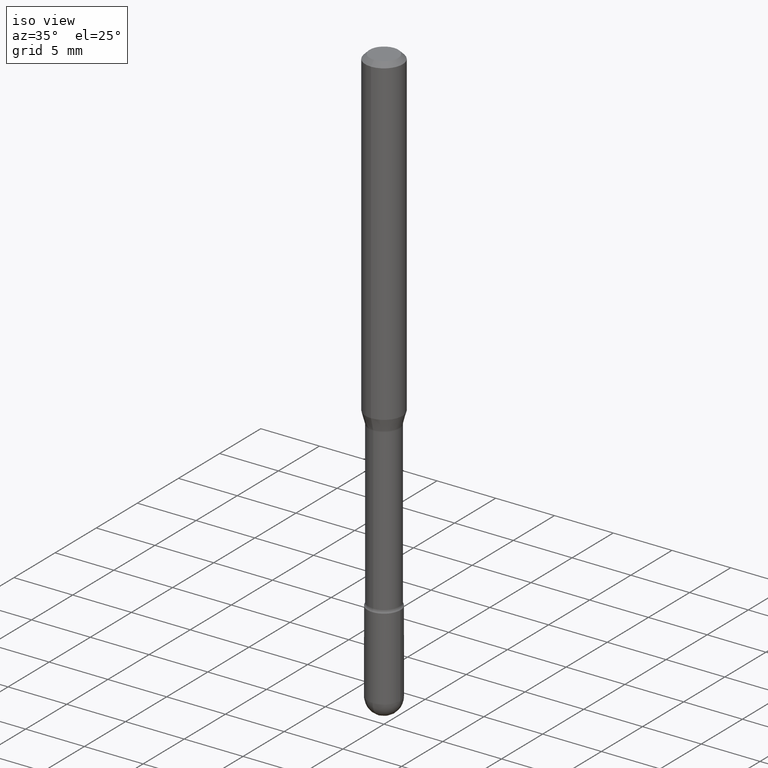
[diagram: clean part render]
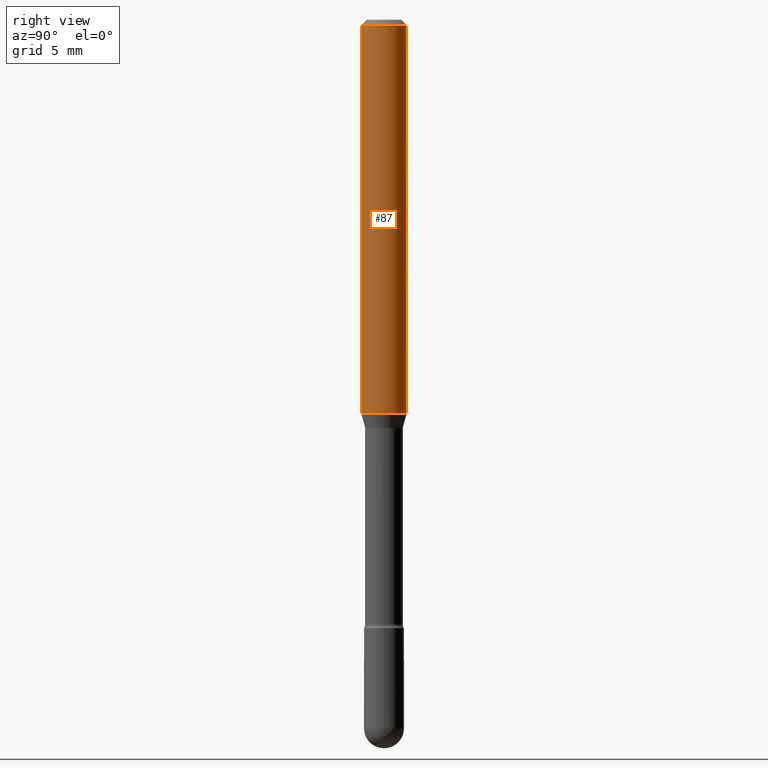
[diagram: tour spotlight — one face highlighted and labeled with its STEP entity id]
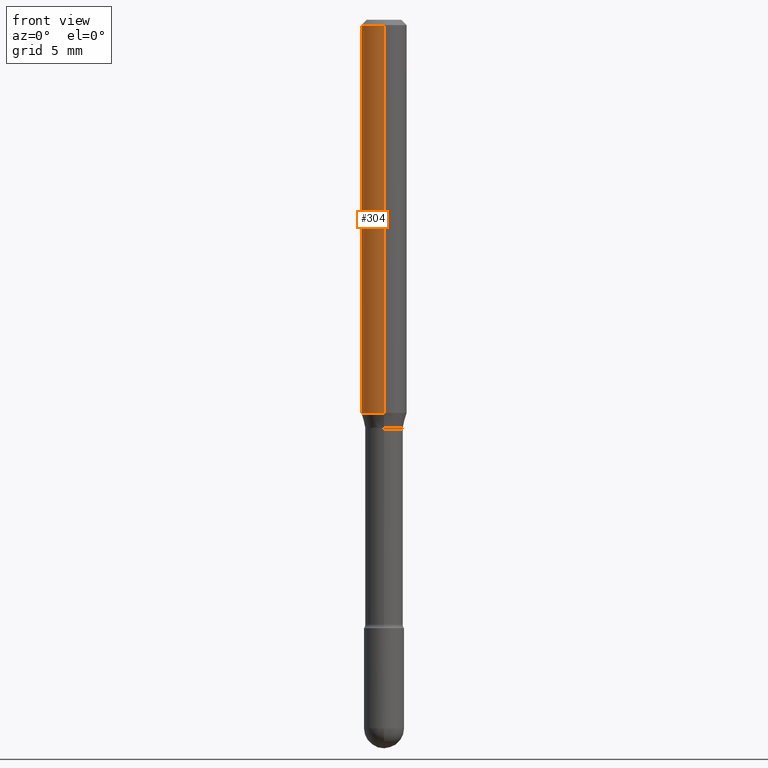
[diagram: tour spotlight — one face highlighted and labeled with its STEP entity id]
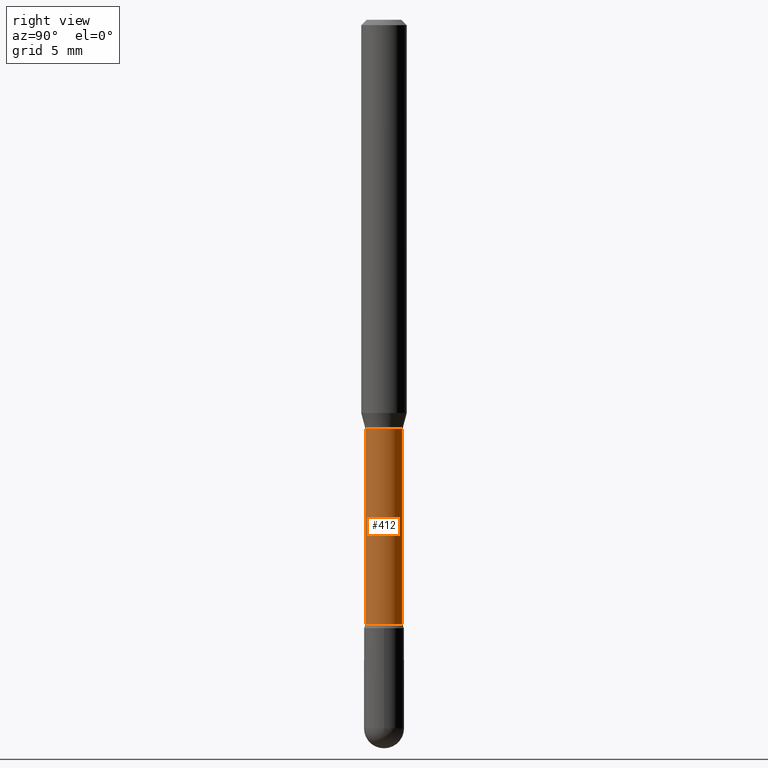
[diagram: tour spotlight — one face highlighted and labeled with its STEP entity id]
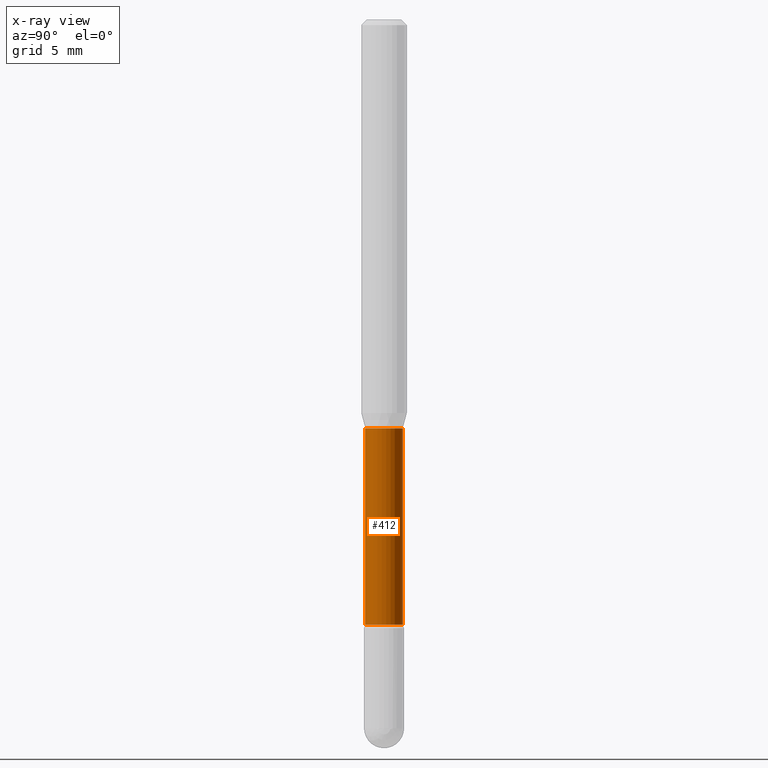
[diagram: x-ray of the same camera — body ghosted, this tour face saturated]
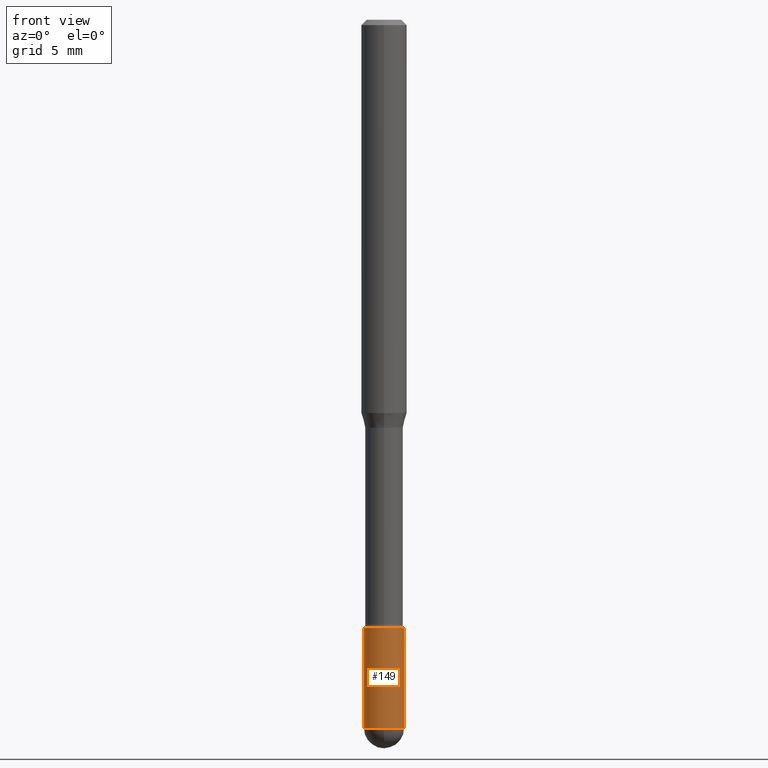
[diagram: tour spotlight — one face highlighted and labeled with its STEP entity id]
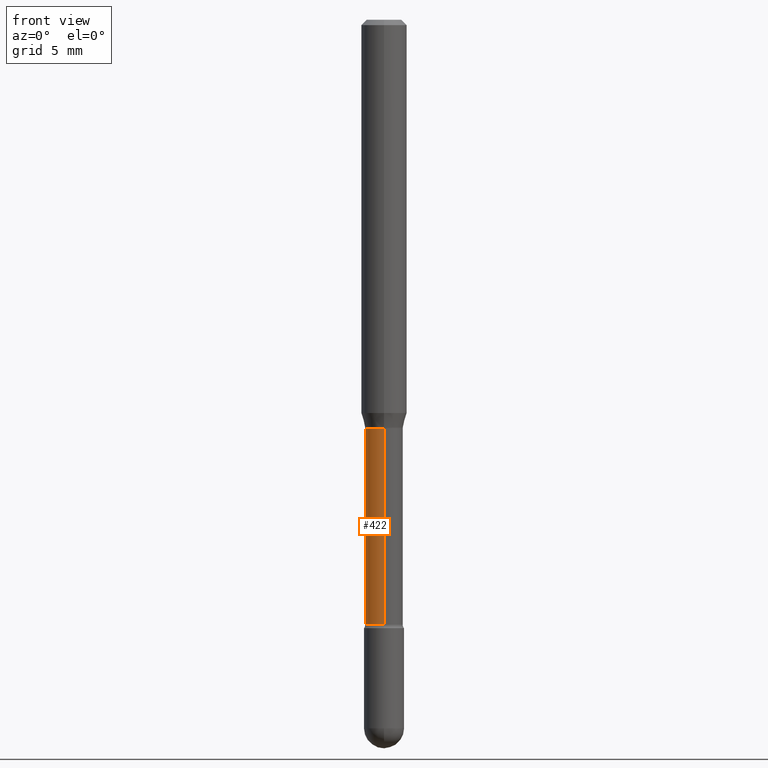
[diagram: tour spotlight — one face highlighted and labeled with its STEP entity id]
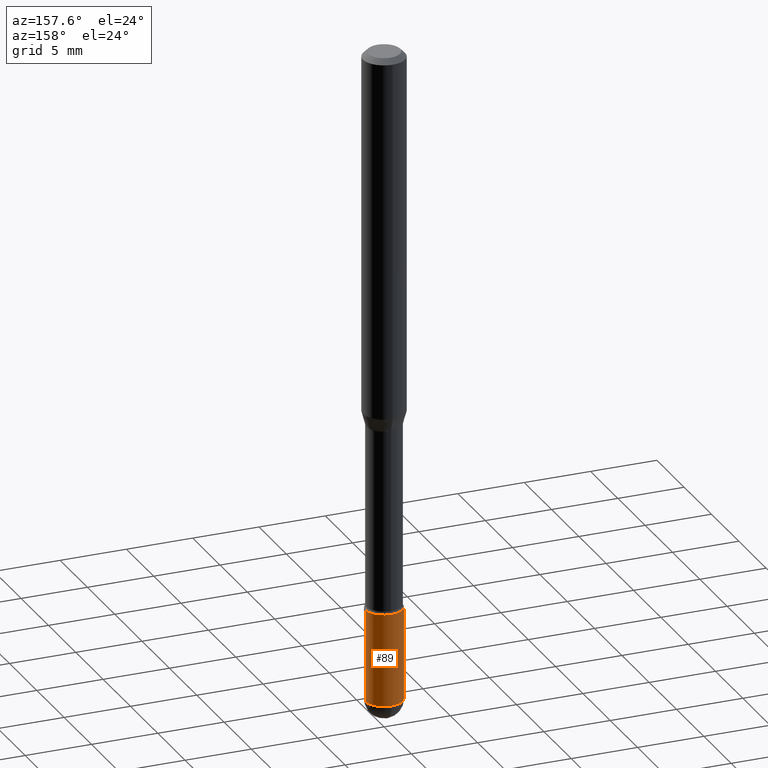
[diagram: tour spotlight — one face highlighted and labeled with its STEP entity id]
A machine part: a face-by-face anatomy tour. The part has 19 B-rep faces; the first image is the clean iso view, then the 6 largest visible faces are spotlighted one at a time (largest first), each with its STEP entity span.

Face 1 — right view, entity #87. In plain terms, the highlighted cylindrical surface (edge-blend (fillet) strip) has radius 1.5875 mm, axis along (-0, 0, 1).
Definition (entity closure, byte-faithful):
#11 = AXIS2_PLACEMENT_3D ( 'NONE', #76, #375, #246 ) ;
#24 = CARTESIAN_POINT ( 'NONE',  ( -4.364351673553916201E-16, -0.06250000000000000000, 6.963005801346586436E-16 ) ) ;
#28 = EDGE_CURVE ( 'NONE', #503, #494, #262, .T. ) ;
#33 = DIRECTION ( 'NONE',  ( -6.982962677686265922E-15, -1.000000000000000000, 3.483106191921935554E-15 ) ) ;
#67 = AXIS2_PLACEMENT_3D ( 'NONE', #243, #331, #498 ) ;
#72 = CARTESIAN_POINT ( 'NONE',  ( 4.440892098500625669E-16, 0.06250000000000000000, 2.598462176478334336E-16 ) ) ;
#76 = CARTESIAN_POINT ( 'NONE',  ( 2.640241856761700178E-29, -3.769896732324770505E-15, -1.079693851278255678 ) ) ;
#87 = ADVANCED_FACE ( 'NONE', ( #540 ), #142, .T. ) ;
#110 = ORIENTED_EDGE ( 'NONE', *, *, #28, .F. ) ;
#117 = EDGE_LOOP ( 'NONE', ( #197, #194, #110, #183 ) ) ;
#142 = CYLINDRICAL_SURFACE ( 'NONE', #67, 0.06250000000000000000 ) ;
#155 = VERTEX_POINT ( 'NONE', #464 ) ;
#166 = VECTOR ( 'NONE', #538, 39.37007874015748143 ) ;
#182 = CARTESIAN_POINT ( 'NONE',  ( -4.364351673553652919E-16, -0.06250000000000377476, -1.079693851278255456 ) ) ;
#183 = ORIENTED_EDGE ( 'NONE', *, *, #488, .F. ) ;
#186 = CARTESIAN_POINT ( 'NONE',  ( -4.364351673553912750E-16, -0.06250000000000005551, -0.01499999999999986587 ) ) ;
#194 = ORIENTED_EDGE ( 'NONE', *, *, #560, .T. ) ;
#195 = AXIS2_PLACEMENT_3D ( 'NONE', #446, #541, #33 ) ;
#197 = ORIENTED_EDGE ( 'NONE', *, *, #441, .T. ) ;
#236 = CARTESIAN_POINT ( 'NONE',  ( 4.440892098500891416E-16, 0.06249999999999995143, -0.01500000000000030129 ) ) ;
#243 = CARTESIAN_POINT ( 'NONE',  ( -1.169113584055446105E-44, 1.669184350826100908E-30, 4.780733988912460139E-16 ) ) ;
#246 = DIRECTION ( 'NONE',  ( -6.982962677686265922E-15, -1.000000000000000000, 4.370956789862821150E-15 ) ) ;
#262 = CIRCLE ( 'NONE', #195, 0.06250000000000000000 ) ;
#280 = LINE ( 'NONE', #24, #166 ) ;
#328 = VERTEX_POINT ( 'NONE', #182 ) ;
#331 = DIRECTION ( 'NONE',  ( -2.445361575076029644E-29, 3.491634899894602075E-15, 1.000000000000000000 ) ) ;
#343 = LINE ( 'NONE', #72, #536 ) ;
#375 = DIRECTION ( 'NONE',  ( -2.445361575076029644E-29, 3.491634899894602075E-15, 1.000000000000000000 ) ) ;
#417 = DIRECTION ( 'NONE',  ( -2.445361575076029644E-29, 3.491634899894602075E-15, 1.000000000000000000 ) ) ;
#441 = EDGE_CURVE ( 'NONE', #328, #155, #496, .T. ) ;
#446 = CARTESIAN_POINT ( 'NONE',  ( 3.668042362614064837E-31, -5.237452349841932127E-17, -0.01500000000000008271 ) ) ;
#464 = CARTESIAN_POINT ( 'NONE',  ( 4.440892098500888458E-16, 0.06249999999999621830, -1.079693851278256123 ) ) ;
#488 = EDGE_CURVE ( 'NONE', #328, #503, #280, .T. ) ;
#494 = VERTEX_POINT ( 'NONE', #236 ) ;
#496 = CIRCLE ( 'NONE', #11, 0.06250000000000000000 ) ;
#498 = DIRECTION ( 'NONE',  ( -6.982962677686265922E-15, -1.000000000000000000, 3.491634899894601286E-15 ) ) ;
#503 = VERTEX_POINT ( 'NONE', #186 ) ;
#536 = VECTOR ( 'NONE', #417, 39.37007874015748143 ) ;
#538 = DIRECTION ( 'NONE',  ( -2.445361575076029644E-29, 3.491634899894602075E-15, 1.000000000000000000 ) ) ;
#540 = FACE_OUTER_BOUND ( 'NONE', #117, .T. ) ;
#541 = DIRECTION ( 'NONE',  ( -2.445361575076029644E-29, 3.491634899894602075E-15, 1.000000000000000000 ) ) ;
#560 = EDGE_CURVE ( 'NONE', #155, #494, #343, .T. ) ;

Face 2 — front view, entity #304. In plain terms, the highlighted cylindrical surface (edge-blend (fillet) strip) has radius 1.5875 mm, axis along (-0, 0, 1).
Definition (entity closure, byte-faithful):
#24 = CARTESIAN_POINT ( 'NONE',  ( -4.364351673553916201E-16, -0.06250000000000000000, 6.963005801346586436E-16 ) ) ;
#43 = CARTESIAN_POINT ( 'NONE',  ( 2.640241856761700178E-29, -3.769896732324770505E-15, -1.079693851278255678 ) ) ;
#47 = DIRECTION ( 'NONE',  ( -6.982962677686265922E-15, -1.000000000000000000, 3.483106191921935554E-15 ) ) ;
#51 = CYLINDRICAL_SURFACE ( 'NONE', #308, 0.06250000000000000000 ) ;
#52 = ORIENTED_EDGE ( 'NONE', *, *, #256, .F. ) ;
#56 = CARTESIAN_POINT ( 'NONE',  ( -1.169113584055446105E-44, 1.669184350826100908E-30, 4.780733988912460139E-16 ) ) ;
#72 = CARTESIAN_POINT ( 'NONE',  ( 4.440892098500625669E-16, 0.06250000000000000000, 2.598462176478334336E-16 ) ) ;
#84 = DIRECTION ( 'NONE',  ( -2.445361575076029644E-29, 3.491634899894602075E-15, 1.000000000000000000 ) ) ;
#94 = AXIS2_PLACEMENT_3D ( 'NONE', #393, #171, #47 ) ;
#155 = VERTEX_POINT ( 'NONE', #464 ) ;
#166 = VECTOR ( 'NONE', #538, 39.37007874015748143 ) ;
#171 = DIRECTION ( 'NONE',  ( -2.445361575076029644E-29, 3.491634899894602075E-15, 1.000000000000000000 ) ) ;
#182 = CARTESIAN_POINT ( 'NONE',  ( -4.364351673553652919E-16, -0.06250000000000377476, -1.079693851278255456 ) ) ;
#184 = AXIS2_PLACEMENT_3D ( 'NONE', #43, #84, #210 ) ;
#185 = EDGE_LOOP ( 'NONE', ( #373, #549, #411, #52 ) ) ;
#186 = CARTESIAN_POINT ( 'NONE',  ( -4.364351673553912750E-16, -0.06250000000000005551, -0.01499999999999986587 ) ) ;
#196 = EDGE_CURVE ( 'NONE', #155, #328, #386, .T. ) ;
#210 = DIRECTION ( 'NONE',  ( -6.982962677686265922E-15, -1.000000000000000000, 4.370956789862821150E-15 ) ) ;
#224 = DIRECTION ( 'NONE',  ( -2.445361575076029644E-29, 3.491634899894602075E-15, 1.000000000000000000 ) ) ;
#236 = CARTESIAN_POINT ( 'NONE',  ( 4.440892098500891416E-16, 0.06249999999999995143, -0.01500000000000030129 ) ) ;
#256 = EDGE_CURVE ( 'NONE', #494, #503, #495, .T. ) ;
#259 = DIRECTION ( 'NONE',  ( -6.982962677686265922E-15, -1.000000000000000000, 3.491634899894601286E-15 ) ) ;
#280 = LINE ( 'NONE', #24, #166 ) ;
#304 = ADVANCED_FACE ( 'NONE', ( #476 ), #51, .T. ) ;
#308 = AXIS2_PLACEMENT_3D ( 'NONE', #56, #224, #259 ) ;
#328 = VERTEX_POINT ( 'NONE', #182 ) ;
#343 = LINE ( 'NONE', #72, #536 ) ;
#373 = ORIENTED_EDGE ( 'NONE', *, *, #560, .F. ) ;
#386 = CIRCLE ( 'NONE', #184, 0.06250000000000000000 ) ;
#393 = CARTESIAN_POINT ( 'NONE',  ( 3.668042362614064837E-31, -5.237452349841932127E-17, -0.01500000000000008271 ) ) ;
#411 = ORIENTED_EDGE ( 'NONE', *, *, #488, .T. ) ;
#417 = DIRECTION ( 'NONE',  ( -2.445361575076029644E-29, 3.491634899894602075E-15, 1.000000000000000000 ) ) ;
#464 = CARTESIAN_POINT ( 'NONE',  ( 4.440892098500888458E-16, 0.06249999999999621830, -1.079693851278256123 ) ) ;
#476 = FACE_OUTER_BOUND ( 'NONE', #185, .T. ) ;
#488 = EDGE_CURVE ( 'NONE', #328, #503, #280, .T. ) ;
#494 = VERTEX_POINT ( 'NONE', #236 ) ;
#495 = CIRCLE ( 'NONE', #94, 0.06250000000000000000 ) ;
#503 = VERTEX_POINT ( 'NONE', #186 ) ;
#536 = VECTOR ( 'NONE', #417, 39.37007874015748143 ) ;
#538 = DIRECTION ( 'NONE',  ( -2.445361575076029644E-29, 3.491634899894602075E-15, 1.000000000000000000 ) ) ;
#549 = ORIENTED_EDGE ( 'NONE', *, *, #196, .T. ) ;
#560 = EDGE_CURVE ( 'NONE', #155, #494, #343, .T. ) ;

Face 3 — right view, entity #412. An x-ray twin of the same camera follows (body ghosted, this face saturated) — the face is partly hidden behind the body. In plain terms, the highlighted cylindrical surface (edge-blend (fillet) strip) has radius 1.3132 mm, axis along (-0, 0, 1).
Definition (entity closure, byte-faithful):
#6 = VECTOR ( 'NONE', #509, 39.37007874015748143 ) ;
#37 = VERTEX_POINT ( 'NONE', #363 ) ;
#62 = CARTESIAN_POINT ( 'NONE',  ( 3.790745495280543333E-16, 0.05169999999999428525, -1.660613307291703089 ) ) ;
#64 = DIRECTION ( 'NONE',  ( -2.445361575076029644E-29, 3.491634899894602075E-15, 1.000000000000000000 ) ) ;
#86 = VERTEX_POINT ( 'NONE', #62 ) ;
#105 = DIRECTION ( 'NONE',  ( -2.445361575076029644E-29, 3.491634899894602075E-15, 1.000000000000000000 ) ) ;
#108 = VERTEX_POINT ( 'NONE', #116 ) ;
#111 = CIRCLE ( 'NONE', #137, 0.05170000000000008616 ) ;
#116 = CARTESIAN_POINT ( 'NONE',  ( -3.610191704363525413E-16, -0.05170000000000391643, -1.121974787463810408 ) ) ;
#118 = VECTOR ( 'NONE', #64, 39.37007874015748143 ) ;
#121 = EDGE_CURVE ( 'NONE', #365, #108, #337, .T. ) ;
#123 = ORIENTED_EDGE ( 'NONE', *, *, #121, .F. ) ;
#137 = AXIS2_PLACEMENT_3D ( 'NONE', #409, #105, #545 ) ;
#160 = AXIS2_PLACEMENT_3D ( 'NONE', #360, #233, #400 ) ;
#192 = CARTESIAN_POINT ( 'NONE',  ( -3.610191704363399195E-16, -0.05170000000000588014, -1.660613307291702645 ) ) ;
#201 = DIRECTION ( 'NONE',  ( -6.982962677686265133E-15, -1.000000000000000000, 3.491634899894602469E-15 ) ) ;
#233 = DIRECTION ( 'NONE',  ( -2.445361575076029644E-29, 3.491634899894602075E-15, 1.000000000000000000 ) ) ;
#261 = CARTESIAN_POINT ( 'NONE',  ( -3.610191704363802007E-16, -0.05170000000000004453, 6.585909232157971509E-16 ) ) ;
#278 = LINE ( 'NONE', #327, #118 ) ;
#301 = AXIS2_PLACEMENT_3D ( 'NONE', #336, #455, #201 ) ;
#316 = ORIENTED_EDGE ( 'NONE', *, *, #389, .T. ) ;
#327 = CARTESIAN_POINT ( 'NONE',  ( 3.673505943879720139E-16, 0.05170000000000004453, 2.975558745666949756E-16 ) ) ;
#330 = CIRCLE ( 'NONE', #160, 0.05169999999999999596 ) ;
#336 = CARTESIAN_POINT ( 'NONE',  ( -1.169113584055446105E-44, 1.669184350826100908E-30, 4.780733988912460139E-16 ) ) ;
#337 = LINE ( 'NONE', #261, #6 ) ;
#351 = EDGE_LOOP ( 'NONE', ( #316, #406, #435, #123 ) ) ;
#360 = CARTESIAN_POINT ( 'NONE',  ( 2.743634033468097732E-29, -3.917526324710470150E-15, -1.121974787463810630 ) ) ;
#363 = CARTESIAN_POINT ( 'NONE',  ( 3.673505943880125909E-16, 0.05169999999999608242, -1.121974787463810630 ) ) ;
#365 = VERTEX_POINT ( 'NONE', #192 ) ;
#384 = EDGE_CURVE ( 'NONE', #86, #37, #278, .T. ) ;
#389 = EDGE_CURVE ( 'NONE', #365, #86, #111, .T. ) ;
#400 = DIRECTION ( 'NONE',  ( -6.982962677686266711E-15, -1.000000000000000000, 2.642019336232363246E-15 ) ) ;
#406 = ORIENTED_EDGE ( 'NONE', *, *, #384, .T. ) ;
#409 = CARTESIAN_POINT ( 'NONE',  ( 4.060799972711053530E-29, -5.798255378969109189E-15, -1.660613307291702867 ) ) ;
#412 = ADVANCED_FACE ( 'NONE', ( #463 ), #550, .T. ) ;
#435 = ORIENTED_EDGE ( 'NONE', *, *, #519, .F. ) ;
#455 = DIRECTION ( 'NONE',  ( -2.445361575076029644E-29, 3.491634899894602075E-15, 1.000000000000000000 ) ) ;
#463 = FACE_OUTER_BOUND ( 'NONE', #351, .T. ) ;
#509 = DIRECTION ( 'NONE',  ( -2.445361575076029644E-29, 3.491634899894602075E-15, 1.000000000000000000 ) ) ;
#519 = EDGE_CURVE ( 'NONE', #108, #37, #330, .T. ) ;
#545 = DIRECTION ( 'NONE',  ( -6.982962677686265133E-15, -1.000000000000000000, 5.284038672464717026E-15 ) ) ;
#550 = CYLINDRICAL_SURFACE ( 'NONE', #301, 0.05170000000000004453 ) ;

Face 4 — front view, entity #149. In plain terms, the highlighted cylindrical surface (edge-blend (fillet) strip) has radius 1.397 mm, axis along (-0, 0, 1).
Definition (entity closure, byte-faithful):
#9 = DIRECTION ( 'NONE',  ( 1.000000000000000000, -6.982962677686262766E-15, 0.000000000000000000 ) ) ;
#10 = VERTEX_POINT ( 'NONE', #65 ) ;
#15 = CARTESIAN_POINT ( 'NONE',  ( 4.756436828030089694E-29, -6.790931204049916306E-15, -1.944999999999999618 ) ) ;
#41 = LINE ( 'NONE', #204, #326 ) ;
#61 = ORIENTED_EDGE ( 'NONE', *, *, #267, .F. ) ;
#65 = CARTESIAN_POINT ( 'NONE',  ( 0.05500000000000000028, -6.694915467231728877E-15, -1.944999999999999618 ) ) ;
#70 = CIRCLE ( 'NONE', #135, 0.05500000000000000028 ) ;
#74 = VERTEX_POINT ( 'NONE', #490 ) ;
#78 = VERTEX_POINT ( 'NONE', #98 ) ;
#85 = DIRECTION ( 'NONE',  ( -2.445468806185136597E-29, 3.491481338843145583E-15, 1.000000000000000000 ) ) ;
#91 = DIRECTION ( 'NONE',  ( -2.445468806185136877E-29, 3.491481338843145188E-15, 1.000000000000000000 ) ) ;
#98 = CARTESIAN_POINT ( 'NONE',  ( -3.907985046680076246E-16, -0.05500000000000680733, -1.944999999999999396 ) ) ;
#122 = DIRECTION ( 'NONE',  ( 1.000000000000000000, -6.982962677686266711E-15, 4.876176775795935793E-29 ) ) ;
#127 = CARTESIAN_POINT ( 'NONE',  ( 0.05500000000000000028, -3.840629472727446888E-16, 2.681897226687764826E-30 ) ) ;
#135 = AXIS2_PLACEMENT_3D ( 'NONE', #231, #85, #9 ) ;
#149 = ADVANCED_FACE ( 'NONE', ( #427 ), #555, .T. ) ;
#159 = CIRCLE ( 'NONE', #317, 0.05500000000000000028 ) ;
#173 = ORIENTED_EDGE ( 'NONE', *, *, #205, .F. ) ;
#204 = CARTESIAN_POINT ( 'NONE',  ( -0.05500000000000000028, 3.907985046680551042E-16, -2.705414299640198362E-30 ) ) ;
#205 = EDGE_CURVE ( 'NONE', #354, #268, #41, .T. ) ;
#215 = AXIS2_PLACEMENT_3D ( 'NONE', #15, #465, #253 ) ;
#220 = CARTESIAN_POINT ( 'NONE',  ( -0.05500000000000000028, -5.920054015290930021E-15, -1.669999999999999929 ) ) ;
#221 = ORIENTED_EDGE ( 'NONE', *, *, #525, .T. ) ;
#231 = CARTESIAN_POINT ( 'NONE',  ( 4.756436828030089694E-29, -6.790931204049916306E-15, -1.944999999999999618 ) ) ;
#253 = DIRECTION ( 'NONE',  ( 1.000000000000000000, -6.982962677686262766E-15, 0.000000000000000000 ) ) ;
#266 = CARTESIAN_POINT ( 'NONE',  ( 4.083932906329177803E-29, -5.830773835868053056E-15, -1.669999999999999929 ) ) ;
#267 = EDGE_CURVE ( 'NONE', #268, #74, #159, .T. ) ;
#268 = VERTEX_POINT ( 'NONE', #220 ) ;
#271 = ORIENTED_EDGE ( 'NONE', *, *, #315, .T. ) ;
#277 = EDGE_CURVE ( 'NONE', #10, #74, #482, .T. ) ;
#294 = CARTESIAN_POINT ( 'NONE',  ( 0.000000000000000000, 0.000000000000000000, 0.000000000000000000 ) ) ;
#302 = DIRECTION ( 'NONE',  ( -2.445468806185136877E-29, 3.491481338843145188E-15, 1.000000000000000000 ) ) ;
#315 = EDGE_CURVE ( 'NONE', #354, #78, #70, .T. ) ;
#317 = AXIS2_PLACEMENT_3D ( 'NONE', #266, #481, #484 ) ;
#326 = VECTOR ( 'NONE', #302, 39.37007874015748143 ) ;
#342 = AXIS2_PLACEMENT_3D ( 'NONE', #294, #383, #122 ) ;
#354 = VERTEX_POINT ( 'NONE', #382 ) ;
#382 = CARTESIAN_POINT ( 'NONE',  ( -0.05500000000000000028, -5.920054015290930021E-15, -1.944999999999999618 ) ) ;
#383 = DIRECTION ( 'NONE',  ( -2.445468806185136597E-29, 3.491481338843145583E-15, 1.000000000000000000 ) ) ;
#394 = ORIENTED_EDGE ( 'NONE', *, *, #277, .T. ) ;
#402 = EDGE_LOOP ( 'NONE', ( #173, #271, #221, #394, #61 ) ) ;
#427 = FACE_OUTER_BOUND ( 'NONE', #402, .T. ) ;
#465 = DIRECTION ( 'NONE',  ( -2.445468806185136597E-29, 3.491481338843145583E-15, 1.000000000000000000 ) ) ;
#475 = VECTOR ( 'NONE', #91, 39.37007874015748143 ) ;
#481 = DIRECTION ( 'NONE',  ( -2.445468806185136597E-29, 3.491481338843145583E-15, 1.000000000000000000 ) ) ;
#482 = LINE ( 'NONE', #127, #475 ) ;
#484 = DIRECTION ( 'NONE',  ( 1.000000000000000000, -6.982962677686262766E-15, 0.000000000000000000 ) ) ;
#487 = CIRCLE ( 'NONE', #215, 0.05500000000000000028 ) ;
#490 = CARTESIAN_POINT ( 'NONE',  ( 0.05500000000000000028, -6.214836783140797252E-15, -1.669999999999999929 ) ) ;
#525 = EDGE_CURVE ( 'NONE', #78, #10, #487, .T. ) ;
#555 = CYLINDRICAL_SURFACE ( 'NONE', #342, 0.05500000000000000028 ) ;

Face 5 — front view, entity #422. In plain terms, the highlighted cylindrical surface (edge-blend (fillet) strip) has radius 1.3132 mm, axis along (-0, 0, 1).
Definition (entity closure, byte-faithful):
#6 = VECTOR ( 'NONE', #509, 39.37007874015748143 ) ;
#17 = DIRECTION ( 'NONE',  ( -6.982962677686265133E-15, -1.000000000000000000, 5.284038672464717026E-15 ) ) ;
#29 = FACE_OUTER_BOUND ( 'NONE', #97, .T. ) ;
#32 = CYLINDRICAL_SURFACE ( 'NONE', #175, 0.05170000000000004453 ) ;
#37 = VERTEX_POINT ( 'NONE', #363 ) ;
#62 = CARTESIAN_POINT ( 'NONE',  ( 3.790745495280543333E-16, 0.05169999999999428525, -1.660613307291703089 ) ) ;
#64 = DIRECTION ( 'NONE',  ( -2.445361575076029644E-29, 3.491634899894602075E-15, 1.000000000000000000 ) ) ;
#86 = VERTEX_POINT ( 'NONE', #62 ) ;
#97 = EDGE_LOOP ( 'NONE', ( #193, #480, #276, #254 ) ) ;
#108 = VERTEX_POINT ( 'NONE', #116 ) ;
#113 = DIRECTION ( 'NONE',  ( -2.445361575076029644E-29, 3.491634899894602075E-15, 1.000000000000000000 ) ) ;
#116 = CARTESIAN_POINT ( 'NONE',  ( -3.610191704363525413E-16, -0.05170000000000391643, -1.121974787463810408 ) ) ;
#118 = VECTOR ( 'NONE', #64, 39.37007874015748143 ) ;
#121 = EDGE_CURVE ( 'NONE', #365, #108, #337, .T. ) ;
#124 = CIRCLE ( 'NONE', #448, 0.05169999999999999596 ) ;
#133 = DIRECTION ( 'NONE',  ( -2.445361575076029644E-29, 3.491634899894602075E-15, 1.000000000000000000 ) ) ;
#175 = AXIS2_PLACEMENT_3D ( 'NONE', #548, #113, #378 ) ;
#192 = CARTESIAN_POINT ( 'NONE',  ( -3.610191704363399195E-16, -0.05170000000000588014, -1.660613307291702645 ) ) ;
#193 = ORIENTED_EDGE ( 'NONE', *, *, #384, .F. ) ;
#254 = ORIENTED_EDGE ( 'NONE', *, *, #347, .F. ) ;
#261 = CARTESIAN_POINT ( 'NONE',  ( -3.610191704363802007E-16, -0.05170000000000004453, 6.585909232157971509E-16 ) ) ;
#276 = ORIENTED_EDGE ( 'NONE', *, *, #121, .T. ) ;
#278 = LINE ( 'NONE', #327, #118 ) ;
#284 = DIRECTION ( 'NONE',  ( -2.445361575076029644E-29, 3.491634899894602075E-15, 1.000000000000000000 ) ) ;
#327 = CARTESIAN_POINT ( 'NONE',  ( 3.673505943879720139E-16, 0.05170000000000004453, 2.975558745666949756E-16 ) ) ;
#337 = LINE ( 'NONE', #261, #6 ) ;
#347 = EDGE_CURVE ( 'NONE', #37, #108, #124, .T. ) ;
#359 = CIRCLE ( 'NONE', #370, 0.05170000000000008616 ) ;
#363 = CARTESIAN_POINT ( 'NONE',  ( 3.673505943880125909E-16, 0.05169999999999608242, -1.121974787463810630 ) ) ;
#365 = VERTEX_POINT ( 'NONE', #192 ) ;
#370 = AXIS2_PLACEMENT_3D ( 'NONE', #497, #284, #17 ) ;
#374 = EDGE_CURVE ( 'NONE', #86, #365, #359, .T. ) ;
#378 = DIRECTION ( 'NONE',  ( -6.982962677686265133E-15, -1.000000000000000000, 3.491634899894602469E-15 ) ) ;
#384 = EDGE_CURVE ( 'NONE', #86, #37, #278, .T. ) ;
#422 = ADVANCED_FACE ( 'NONE', ( #29 ), #32, .T. ) ;
#423 = DIRECTION ( 'NONE',  ( -6.982962677686266711E-15, -1.000000000000000000, 2.642019336232363246E-15 ) ) ;
#448 = AXIS2_PLACEMENT_3D ( 'NONE', #530, #133, #423 ) ;
#480 = ORIENTED_EDGE ( 'NONE', *, *, #374, .T. ) ;
#497 = CARTESIAN_POINT ( 'NONE',  ( 4.060799972711053530E-29, -5.798255378969109189E-15, -1.660613307291702867 ) ) ;
#509 = DIRECTION ( 'NONE',  ( -2.445361575076029644E-29, 3.491634899894602075E-15, 1.000000000000000000 ) ) ;
#530 = CARTESIAN_POINT ( 'NONE',  ( 2.743634033468097732E-29, -3.917526324710470150E-15, -1.121974787463810630 ) ) ;
#548 = CARTESIAN_POINT ( 'NONE',  ( -1.169113584055446105E-44, 1.669184350826100908E-30, 4.780733988912460139E-16 ) ) ;

Face 6 — auxiliary view, entity #89. In plain terms, the highlighted cylindrical surface (edge-blend (fillet) strip) has radius 1.397 mm, axis along (-0, 0, 1).
Definition (entity closure, byte-faithful):
#1 = DIRECTION ( 'NONE',  ( 1.000000000000000000, -6.982962677686262766E-15, 0.000000000000000000 ) ) ;
#10 = VERTEX_POINT ( 'NONE', #65 ) ;
#41 = LINE ( 'NONE', #204, #326 ) ;
#65 = CARTESIAN_POINT ( 'NONE',  ( 0.05500000000000000028, -6.694915467231728877E-15, -1.944999999999999618 ) ) ;
#66 = VERTEX_POINT ( 'NONE', #369 ) ;
#74 = VERTEX_POINT ( 'NONE', #490 ) ;
#82 = FACE_OUTER_BOUND ( 'NONE', #287, .T. ) ;
#89 = ADVANCED_FACE ( 'NONE', ( #82 ), #161, .T. ) ;
#91 = DIRECTION ( 'NONE',  ( -2.445468806185136877E-29, 3.491481338843145188E-15, 1.000000000000000000 ) ) ;
#101 = DIRECTION ( 'NONE',  ( 1.000000000000000000, -6.982962677686262766E-15, 0.000000000000000000 ) ) ;
#127 = CARTESIAN_POINT ( 'NONE',  ( 0.05500000000000000028, -3.840629472727446888E-16, 2.681897226687764826E-30 ) ) ;
#145 = DIRECTION ( 'NONE',  ( 1.000000000000000000, -6.982962677686262766E-15, 0.000000000000000000 ) ) ;
#146 = AXIS2_PLACEMENT_3D ( 'NONE', #471, #346, #1 ) ;
#158 = DIRECTION ( 'NONE',  ( -2.445468806185136597E-29, 3.491481338843145583E-15, 1.000000000000000000 ) ) ;
#161 = CYLINDRICAL_SURFACE ( 'NONE', #290, 0.05500000000000000028 ) ;
#198 = CIRCLE ( 'NONE', #230, 0.05500000000000000028 ) ;
#204 = CARTESIAN_POINT ( 'NONE',  ( -0.05500000000000000028, 3.907985046680551042E-16, -2.705414299640198362E-30 ) ) ;
#205 = EDGE_CURVE ( 'NONE', #354, #268, #41, .T. ) ;
#220 = CARTESIAN_POINT ( 'NONE',  ( -0.05500000000000000028, -5.920054015290930021E-15, -1.669999999999999929 ) ) ;
#230 = AXIS2_PLACEMENT_3D ( 'NONE', #367, #324, #145 ) ;
#245 = EDGE_CURVE ( 'NONE', #66, #354, #553, .T. ) ;
#260 = CARTESIAN_POINT ( 'NONE',  ( 0.000000000000000000, 0.000000000000000000, 0.000000000000000000 ) ) ;
#268 = VERTEX_POINT ( 'NONE', #220 ) ;
#277 = EDGE_CURVE ( 'NONE', #10, #74, #482, .T. ) ;
#287 = EDGE_LOOP ( 'NONE', ( #358, #433, #323, #289, #531 ) ) ;
#289 = ORIENTED_EDGE ( 'NONE', *, *, #277, .F. ) ;
#290 = AXIS2_PLACEMENT_3D ( 'NONE', #260, #158, #516 ) ;
#302 = DIRECTION ( 'NONE',  ( -2.445468806185136877E-29, 3.491481338843145188E-15, 1.000000000000000000 ) ) ;
#319 = AXIS2_PLACEMENT_3D ( 'NONE', #333, #502, #101 ) ;
#323 = ORIENTED_EDGE ( 'NONE', *, *, #514, .F. ) ;
#324 = DIRECTION ( 'NONE',  ( -2.445468806185136597E-29, 3.491481338843145583E-15, 1.000000000000000000 ) ) ;
#326 = VECTOR ( 'NONE', #302, 39.37007874015748143 ) ;
#333 = CARTESIAN_POINT ( 'NONE',  ( 4.756436828030089694E-29, -6.790931204049916306E-15, -1.944999999999999618 ) ) ;
#346 = DIRECTION ( 'NONE',  ( -2.445468806185136597E-29, 3.491481338843145583E-15, 1.000000000000000000 ) ) ;
#354 = VERTEX_POINT ( 'NONE', #382 ) ;
#358 = ORIENTED_EDGE ( 'NONE', *, *, #245, .T. ) ;
#367 = CARTESIAN_POINT ( 'NONE',  ( 4.083932906329177803E-29, -5.830773835868053056E-15, -1.669999999999999929 ) ) ;
#369 = CARTESIAN_POINT ( 'NONE',  ( 3.840629472727923656E-16, 0.05499999999999323486, -1.944999999999999840 ) ) ;
#382 = CARTESIAN_POINT ( 'NONE',  ( -0.05500000000000000028, -5.920054015290930021E-15, -1.944999999999999618 ) ) ;
#398 = CIRCLE ( 'NONE', #319, 0.05500000000000000028 ) ;
#433 = ORIENTED_EDGE ( 'NONE', *, *, #205, .T. ) ;
#457 = EDGE_CURVE ( 'NONE', #10, #66, #398, .T. ) ;
#471 = CARTESIAN_POINT ( 'NONE',  ( 4.756436828030089694E-29, -6.790931204049916306E-15, -1.944999999999999618 ) ) ;
#475 = VECTOR ( 'NONE', #91, 39.37007874015748143 ) ;
#482 = LINE ( 'NONE', #127, #475 ) ;
#490 = CARTESIAN_POINT ( 'NONE',  ( 0.05500000000000000028, -6.214836783140797252E-15, -1.669999999999999929 ) ) ;
#502 = DIRECTION ( 'NONE',  ( -2.445468806185136597E-29, 3.491481338843145583E-15, 1.000000000000000000 ) ) ;
#514 = EDGE_CURVE ( 'NONE', #74, #268, #198, .T. ) ;
#516 = DIRECTION ( 'NONE',  ( 1.000000000000000000, -6.982962677686266711E-15, 4.876176775795935793E-29 ) ) ;
#531 = ORIENTED_EDGE ( 'NONE', *, *, #457, .T. ) ;
#553 = CIRCLE ( 'NONE', #146, 0.05500000000000000028 ) ;